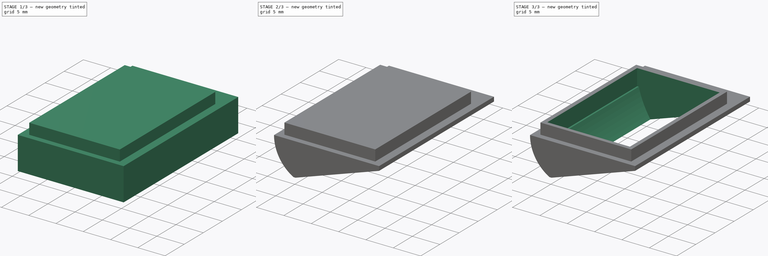
[diagram: build sequence overview — one tinted view per stage of 3, left to right]
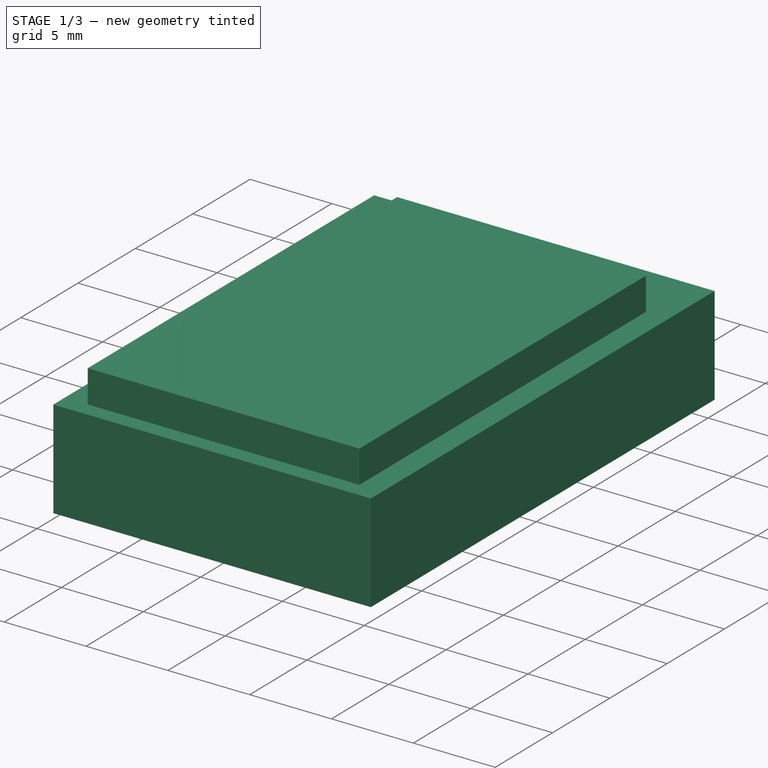
[diagram: stage 1 of 3 — iso view after this stage's code; geometry added in this stage tinted green]
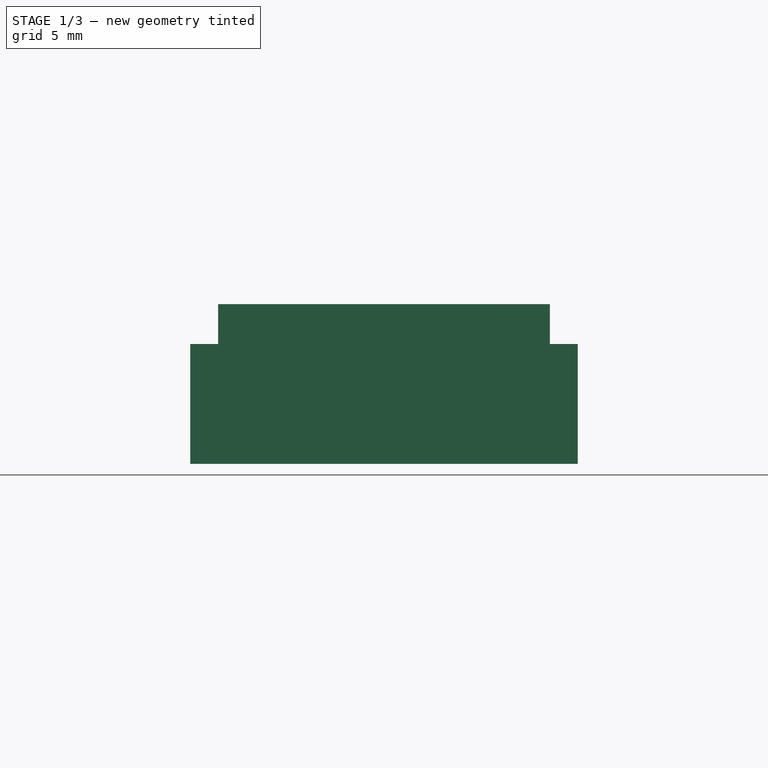
[diagram: stage 1 of 3 — front view after this stage's code; geometry added in this stage tinted green]
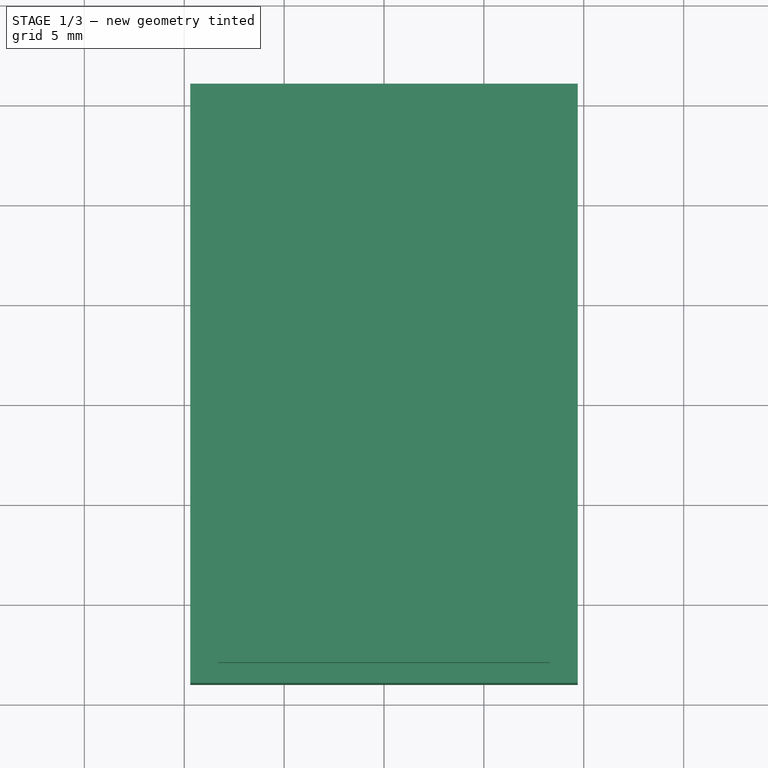
[diagram: stage 1 of 3 — top view after this stage's code; geometry added in this stage tinted green]
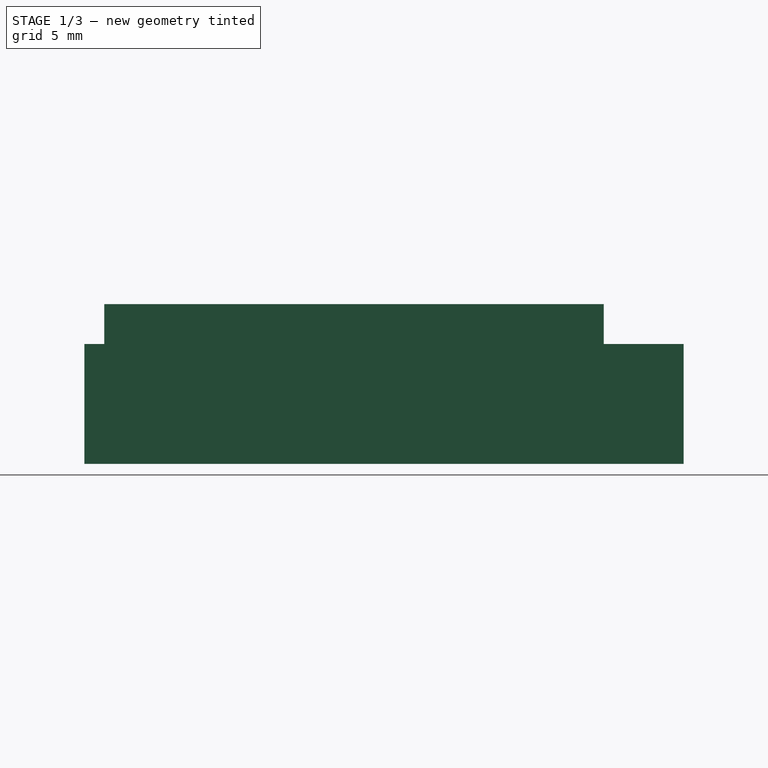
[diagram: stage 1 of 3 — right view after this stage's code; geometry added in this stage tinted green]
FCSTD DOCUMENT  (FreeCAD 0.19R)
Label: FanDuct
License: All rights reserved
LicenseURL: http://en.wikipedia.org/wiki/All_rights_reserved
objects: Sketcher::SketchObject×5, PartDesign::Pocket×3, PartDesign::Pad×2, PartDesign::Body×1
note: 16 computed .brp shape members not serialized (recipe doc carries the construction recipe); baked Part::Feature solids carry a one-line shape summary decoded from their .brp

FEATURE [Sketcher::SketchObject] Sketch
  FullyConstrained = true
  MapMode = 5
  Support = -> [XY_Plane]
  sketch-geometry (4):
    g0: LineSegment StartX=-8.3 StartY=12 StartZ=0 EndX=8.3 EndY=12 EndZ=0
    g1: LineSegment StartX=8.3 StartY=12 StartZ=0 EndX=8.3 EndY=-13 EndZ=0
    g2: LineSegment StartX=8.3 StartY=-13 StartZ=0 EndX=-8.3 EndY=-13 EndZ=0
    g3: LineSegment StartX=-8.3 StartY=-13 StartZ=0 EndX=-8.3 EndY=12 EndZ=0
  constraints (11):
    c: Coincident(g0,g1)
    c: Coincident(g1,g2)
    c: Coincident(g2,g3)
    c: Coincident(g3,g0)
    c: Horizontal(g2)
    c: Vertical(g1)
    c: Vertical(g3)
    c: Distance(g0) = 16.6
    c: Distance(g1) = 25
    c: Symmetric(g0,g0,g-2)
    c: DistanceY(g0) = 12
FEATURE [PartDesign::Pad] Pad
  Direction = (1,1,1)
  Length = 2
  Length2 = 100
  Profile = -> Sketch
  Type = 0
FEATURE [Sketcher::SketchObject] Sketch001
  FullyConstrained = true
  MapMode = 5
  Placement = pos=(0,0,0) rot=(1,0,0;3.14159rad)
  Support = -> [Pad]
  sketch-geometry (4):
    g0: LineSegment StartX=-9.7 StartY=14 StartZ=0 EndX=9.7 EndY=14 EndZ=0
    g1: LineSegment StartX=9.7 StartY=14 StartZ=0 EndX=9.7 EndY=-16 EndZ=0
    g2: LineSegment StartX=9.7 StartY=-16 StartZ=0 EndX=-9.7 EndY=-16 EndZ=0
    g3: LineSegment StartX=-9.7 StartY=-16 StartZ=0 EndX=-9.7 EndY=14 EndZ=0
  constraints (11):
    c: Coincident(g0,g1)
    c: Coincident(g1,g2)
    c: Coincident(g2,g3)
    c: Coincident(g3,g0)
    c: Horizontal(g2)
    c: Vertical(g1)
    c: Vertical(g3)
    c: Distance(g0) = 19.4
    c: Symmetric(g0,g0,g-2)
    c: Distance(g1) = 30
    c: DistanceY(g0) = 14
FEATURE [PartDesign::Pad] Pad001
  BaseFeature = -> Pad
  Direction = (1,1,1)
  Length = 6
  Length2 = 100
  Profile = -> Sketch001
  Type = 0
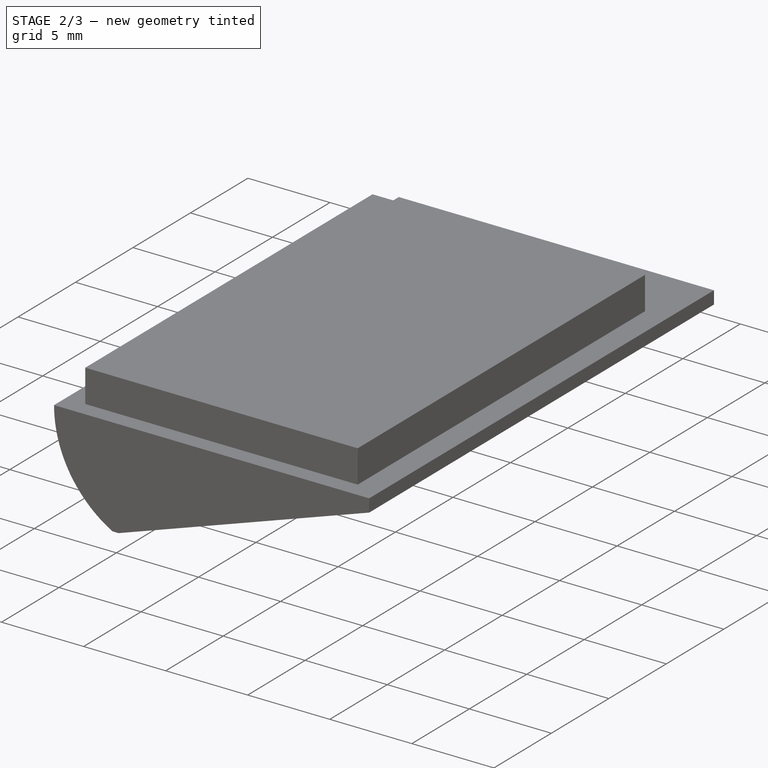
[diagram: stage 2 of 3 — iso view after this stage's code; geometry added in this stage tinted green]
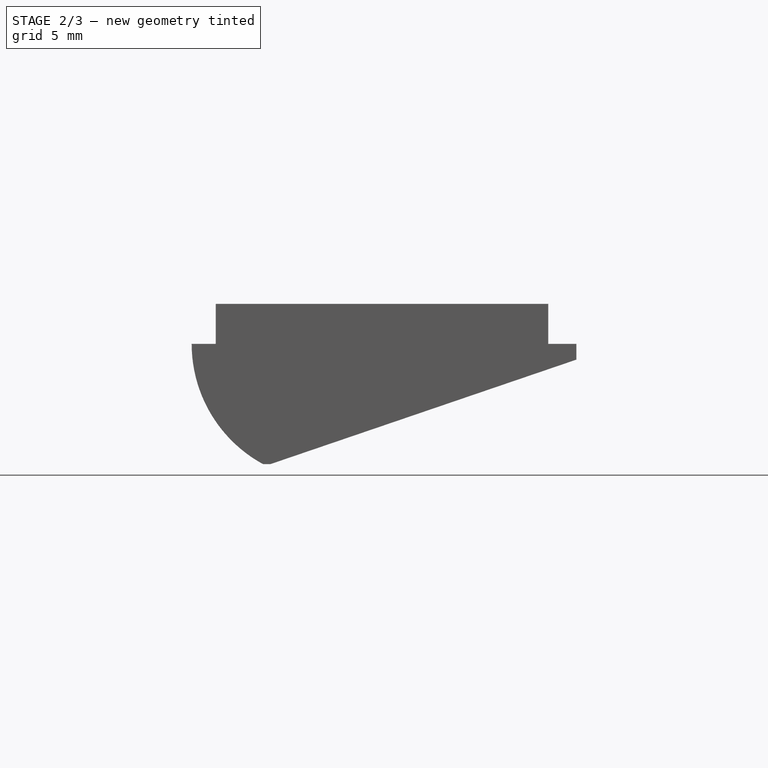
[diagram: stage 2 of 3 — front view after this stage's code; geometry added in this stage tinted green]
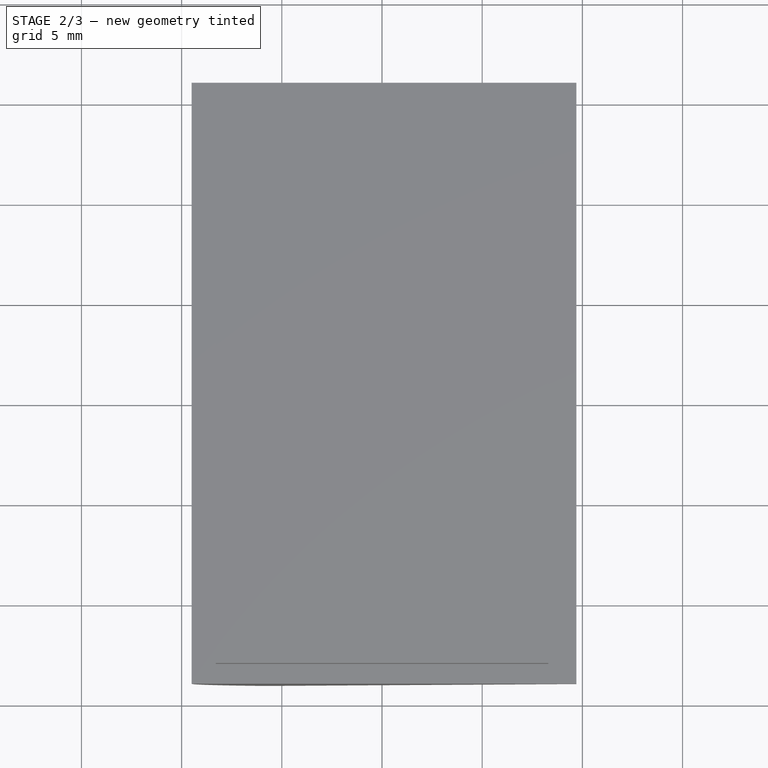
[diagram: stage 2 of 3 — top view after this stage's code; geometry added in this stage tinted green]
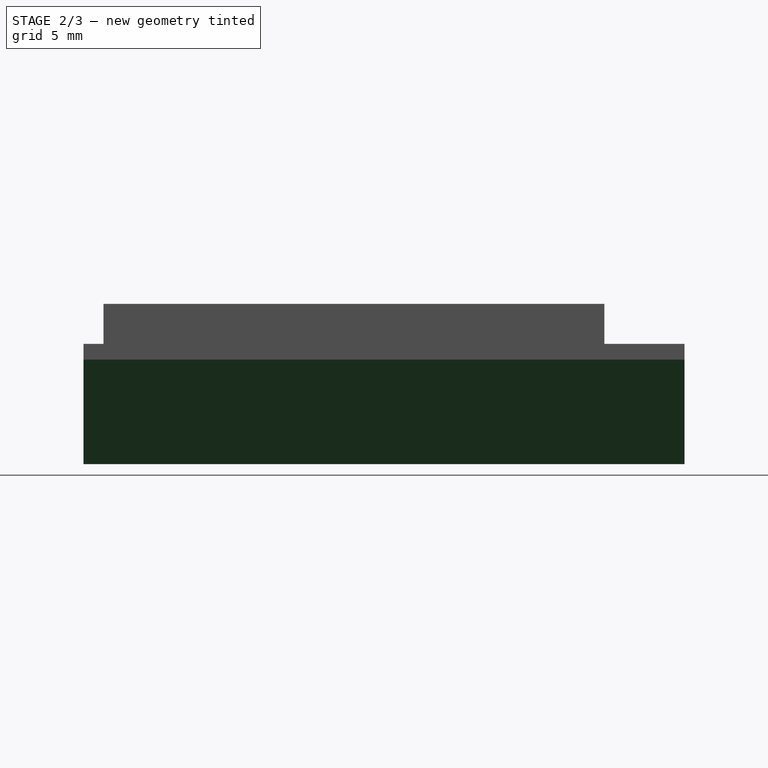
[diagram: stage 2 of 3 — right view after this stage's code; geometry added in this stage tinted green]
FEATURE [Sketcher::SketchObject] Sketch002
  FullyConstrained = false
  MapMode = 5
  Placement = pos=(0,-14,0) rot=(1,0,0;1.5708rad)
  Support = -> [Pad001]
  sketch-geometry (6):
    g0: ArcOfCircle CenterX=-2.6675 CenterY=0 CenterZ=0 NormalX=0 NormalY=0 NormalZ=1 AngleXU=0 Radius=6.8325 StartAngle=3.14159 EndAngle=4.23724
    g1: LineSegment StartX=-9.5 StartY=8e-16 StartZ=0 EndX=-9.5 EndY=2.98582 EndZ=0
    g2: LineSegment StartX=-9.5 StartY=2.98582 StartZ=0 EndX=-15.2842 EndY=-12.5127 EndZ=0
    g3: LineSegment StartX=10.9644 StartY=-0.352326 StartZ=0 EndX=-5.79316 EndY=-6.07563 EndZ=0
    g4: LineSegment StartX=10.9644 StartY=-0.352326 StartZ=0 EndX=10.3924 EndY=-13.7203 EndZ=0
    g5: LineSegment StartX=10.3924 StartY=-13.7203 StartZ=0 EndX=-15.2842 EndY=-12.5127 EndZ=0
  constraints (8):
    c: PointOnObject(g0,g-1)
    c: DistanceX(g0) = -9.5
    c: Tangent(g0,g1) = 1.5708
    c: Coincident(g1,g2)
    c: Coincident(g3,g0)
    c: Coincident(g3,g4)
    c: Coincident(g4,g5)
    c: Coincident(g5,g2)
FEATURE [PartDesign::Pocket] Pocket
  BaseFeature = -> Pad001
  Length = 5
  Length2 = 100
  Profile = -> Sketch002
  Type = 1
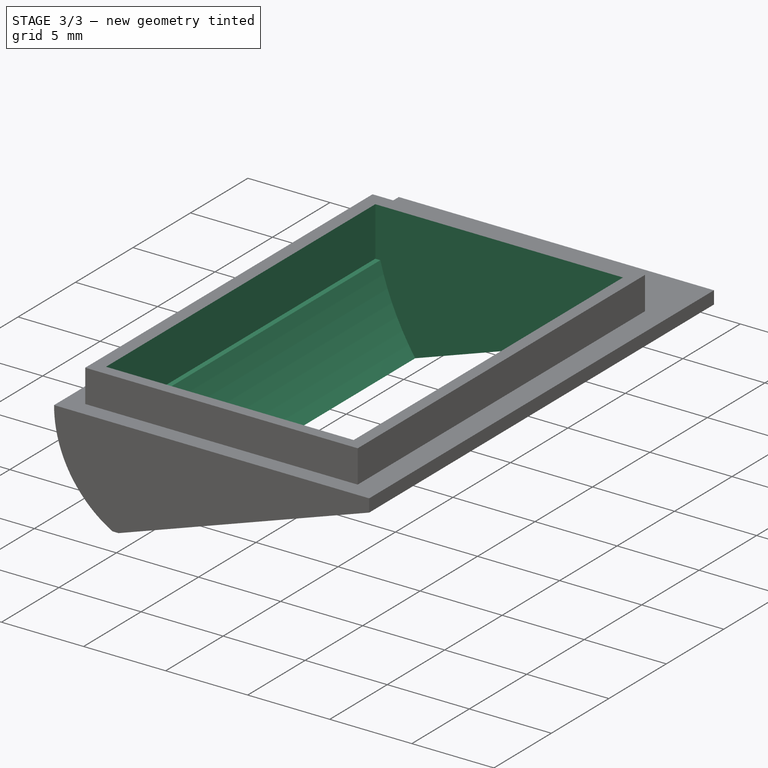
[diagram: stage 3 of 3 — iso view after this stage's code; geometry added in this stage tinted green]
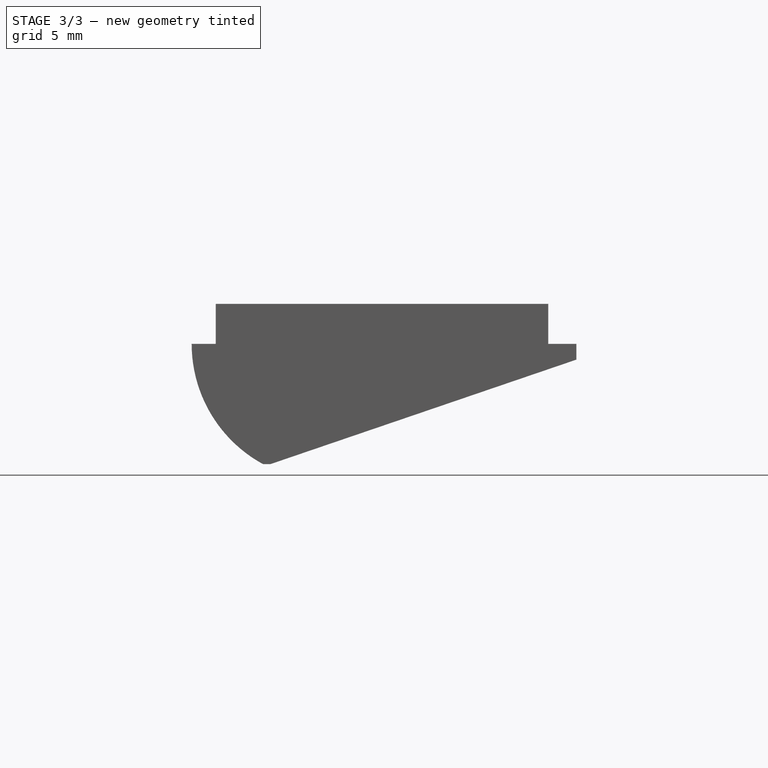
[diagram: stage 3 of 3 — front view after this stage's code; geometry added in this stage tinted green]
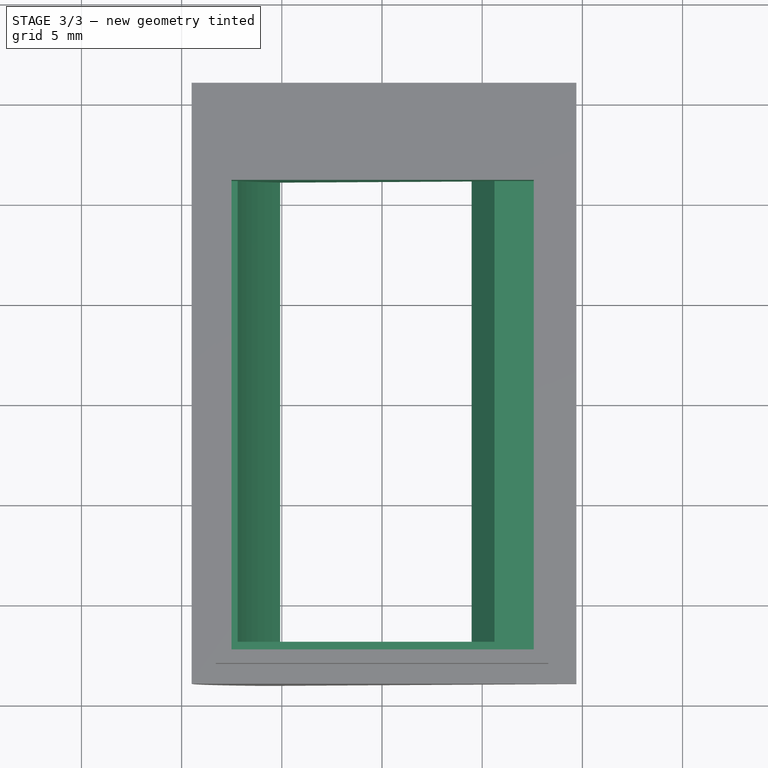
[diagram: stage 3 of 3 — top view after this stage's code; geometry added in this stage tinted green]
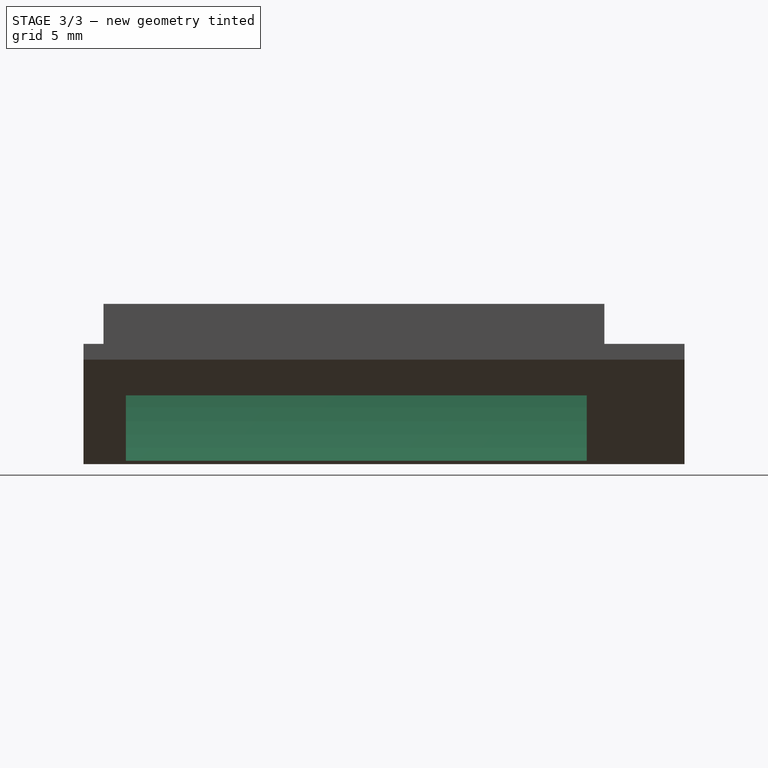
[diagram: stage 3 of 3 — right view after this stage's code; geometry added in this stage tinted green]
FEATURE [Sketcher::SketchObject] Sketch003
  FullyConstrained = false
  MapMode = 5
  Placement = pos=(0,0,2) rot=(0,0,1;0rad)
  Support = -> [Pocket]
  sketch-geometry (4):
    g0: LineSegment StartX=-7.51336 StartY=11.1178 StartZ=0 EndX=7.57424 EndY=11.1178 EndZ=0
    g1: LineSegment StartX=7.57424 StartY=11.1178 StartZ=0 EndX=7.57424 EndY=-12.3151 EndZ=0
    g2: LineSegment StartX=7.57424 StartY=-12.3151 StartZ=0 EndX=-7.51336 EndY=-12.3151 EndZ=0
    g3: LineSegment StartX=-7.51336 StartY=-12.3151 StartZ=0 EndX=-7.51336 EndY=11.1178 EndZ=0
  constraints (8):
    c: Coincident(g0,g1)
    c: Coincident(g1,g2)
    c: Coincident(g2,g3)
    c: Coincident(g3,g0)
    c: Horizontal(g0)
    c: Horizontal(g2)
    c: Vertical(g1)
    c: Vertical(g3)
FEATURE [PartDesign::Pocket] Pocket001
  BaseFeature = -> Pocket
  Length = 3
  Length2 = 100
  Profile = -> Sketch003
  Type = 0
FEATURE [Sketcher::SketchObject] Sketch004
  FullyConstrained = false
  MapMode = 5
  Placement = pos=(0,11.1178,0) rot=(1,0,0;1.5708rad)
  Support = -> [Pocket001]
  sketch-geometry (3):
    g0: LineSegment StartX=7.06197 StartY=0.986589 StartZ=0 EndX=-7.42394 EndY=1.2e-15 EndZ=0
    g1: ArcOfCircle CenterX=8.04172 CenterY=2.81967 CenterZ=0 NormalX=0 NormalY=0 NormalZ=1 AngleXU=0 Radius=15.7206 StartAngle=3.32193 EndAngle=4.1012
    g2: LineSegment StartX=-0.979385 StartY=-10.055 StartZ=0 EndX=7.06197 EndY=0.986589 EndZ=0
  constraints (6):
    c: PointOnObject(g0,g-1)
    c: Coincident(g1,g0)
    c: DistanceX(g1) = 8.04172
    c: DistanceY(g1) = 2.81967
    c: Coincident(g2,g1)
    c: Coincident(g2,g0)
FEATURE [PartDesign::Pocket] Pocket002
  BaseFeature = -> Pocket001
  Length = 23
  Length2 = 100
  Profile = -> Sketch004
  Reversed = true
  Type = 0
FEATURE [PartDesign::Body] Body
  Group = -> [Sketch,Pad,Sketch001,Pad001,Sketch002,Pocket,Sketch003,Pocket001,Sketch004,Pocket002]
  Origin = -> Origin
  Tip = -> Pocket002
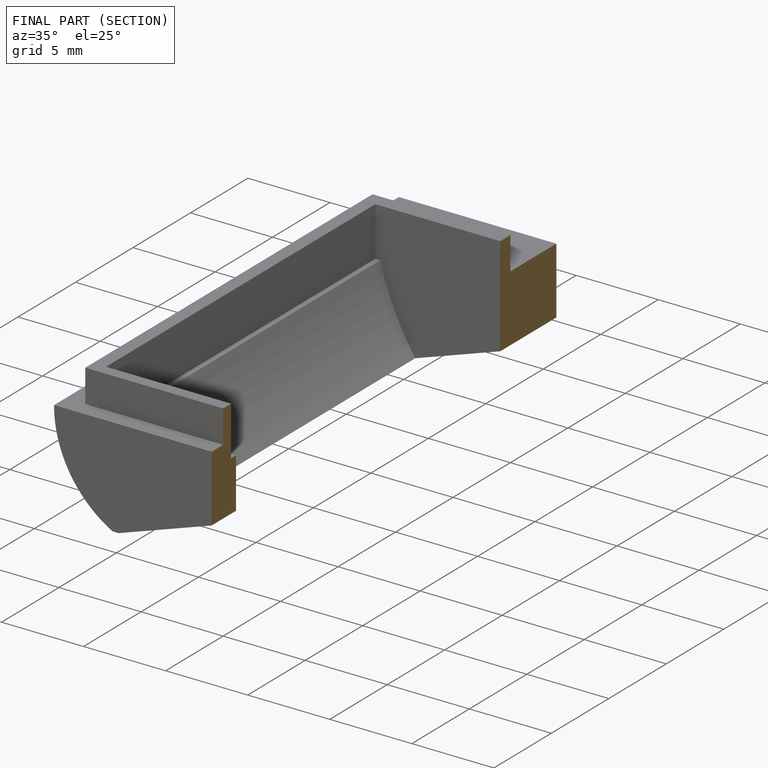
[diagram: finished part — half-section view (interior)]
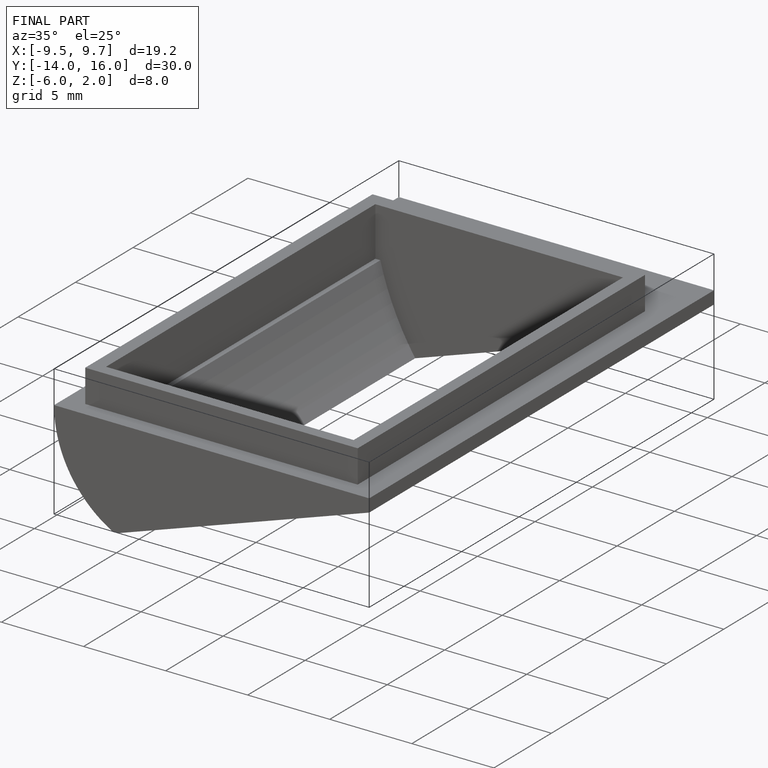
[diagram: finished part — iso view with bounding-box wireframe]
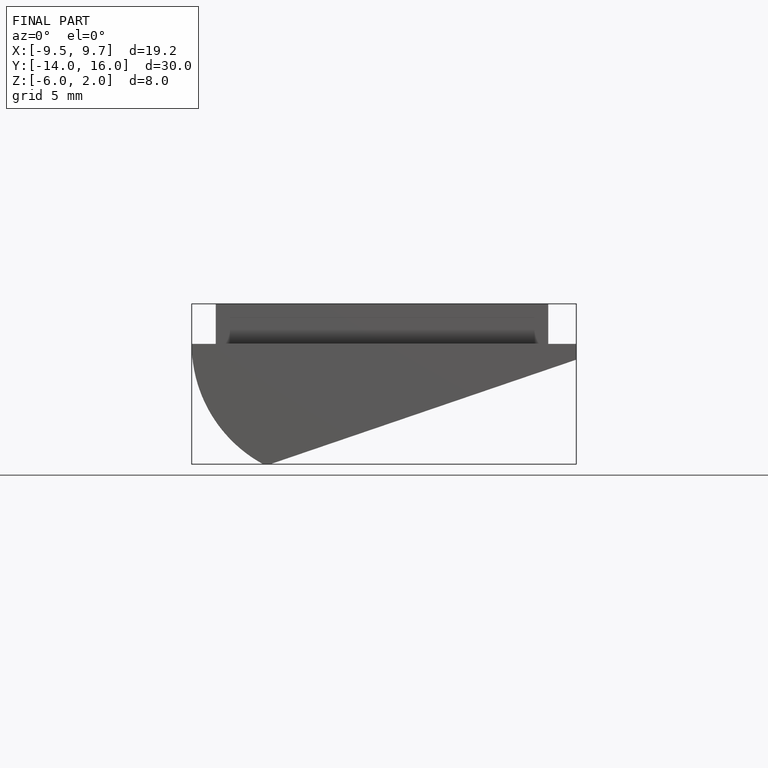
[diagram: finished part — front view with bounding-box wireframe]
